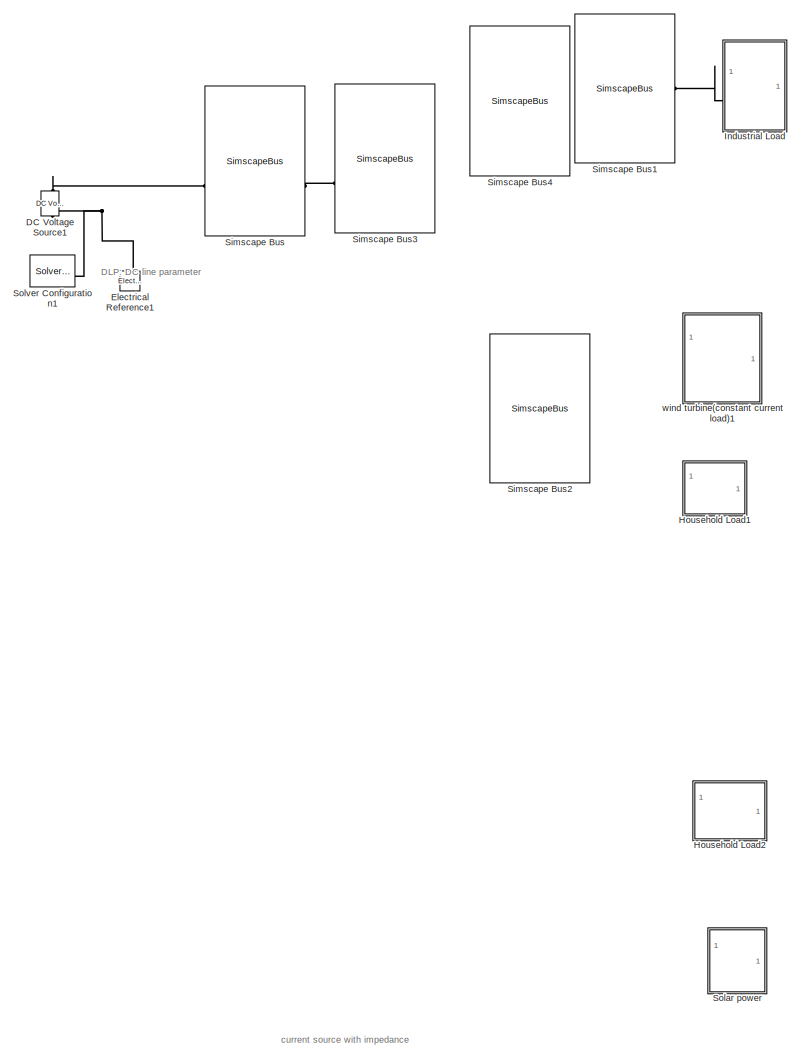
[diagram: root canvas - part 1/2, center side, full height]
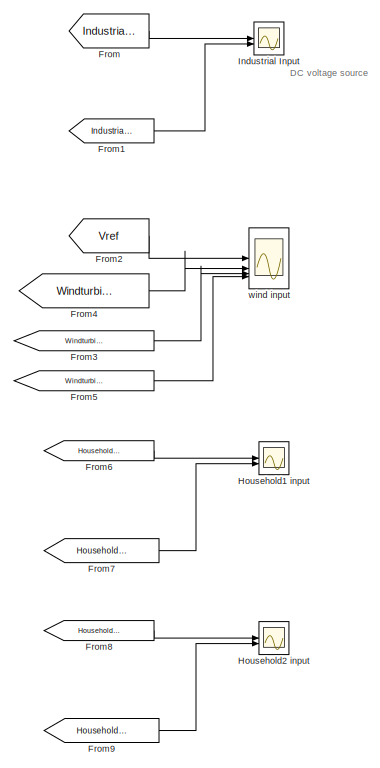
[diagram: root canvas - part 2/2, middle left region]
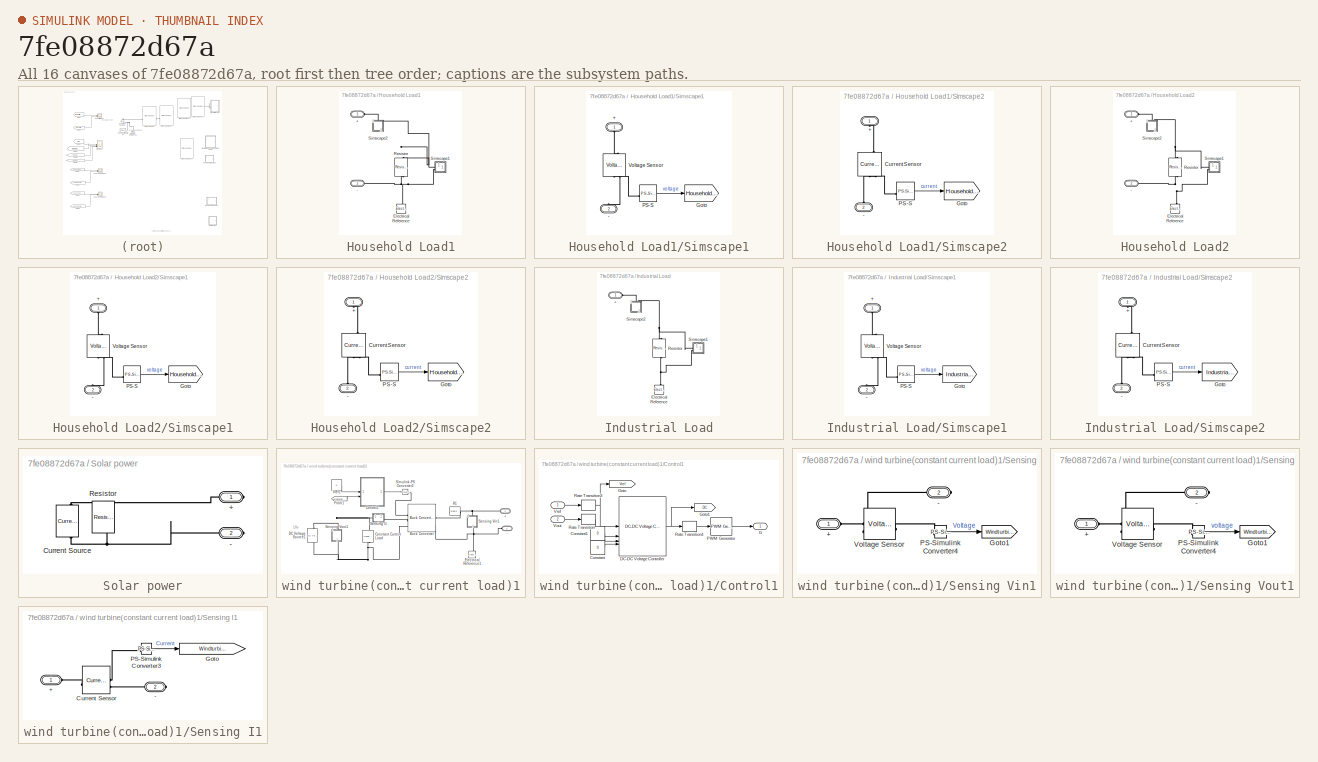
[diagram: thumbnail index - all 16 canvases of the model, root first then tree order]
MODEL slx_7fe08872d67a
KIND model
CONFIG AbsTol = auto
CONFIG EnableMultiTasking = off
CONFIG FixedStep = auto
CONFIG MaxStep = auto
CONFIG MinStep = auto
CONFIG RelTol = 1e-3
CONFIG SampleTimeConstraint = Unconstrained
CONFIG SolverName = VariableStepAuto
CONFIG StartTime = 0.0
CONFIG StopTime = 10.0
BLOCK [Reference] DC Voltage Source1  REF=ee_lib/Additional
Components/SPICE Sources/DC Voltage Source
  NameLocation = right
  SourceBlock = ee_lib/Additional\nComponents/SPICE Sources/DC Voltage Source
  SourceType = DC Voltage Source
BLOCK [Reference] Electrical Reference1  REF=fl_lib/Electrical/Electrical Elements/Electrical Reference
  NameLocation = right
  SourceBlock = fl_lib/Electrical/Electrical Elements/Electrical Reference
  SourceType = Electrical Reference
BLOCK [From] From
  GotoTag = IndustrialVoltage
  IconDisplay = Signal name
  TagVisibility = global
BLOCK [From] From1
  GotoTag = IndustrialCurrent
  IconDisplay = Signal name
  TagVisibility = global
BLOCK [From] From2
  GotoTag = Vref
  IconDisplay = Signal name
  TagVisibility = global
BLOCK [From] From3
  GotoTag = WindturbineVoltage
  IconDisplay = Signal name
  TagVisibility = global
BLOCK [From] From4
  GotoTag = WindturbineInputVoltage
  IconDisplay = Signal name
  TagVisibility = global
BLOCK [From] From5
  GotoTag = WindturbineCurrent
  IconDisplay = Signal name
  TagVisibility = global
BLOCK [From] From6
  GotoTag = Household1Voltage
  IconDisplay = Signal name
  TagVisibility = global
BLOCK [From] From7
  GotoTag = Household1Current
  IconDisplay = Signal name
  TagVisibility = global
BLOCK [From] From8
  GotoTag = Household2Voltage
  IconDisplay = Signal name
  TagVisibility = global
BLOCK [From] From9
  GotoTag = Household2Current
  IconDisplay = Signal name
  TagVisibility = global
BLOCK [SubSystem] Household Load1
BLOCK [PMIOPort] Household Load1/+
  Side = Left
BLOCK [PMIOPort] Household Load1/-
  Port = 2
  Side = Left
BLOCK [Reference] Household Load1/Electrical Reference  REF=fl_lib/Electrical/Electrical Elements/Electrical Reference
  NameLocation = right
  SourceBlock = fl_lib/Electrical/Electrical Elements/Electrical Reference
  SourceType = Electrical Reference
BLOCK [Reference] Household Load1/Resistor  REF=fl_lib/Electrical/Electrical Elements/Resistor
  NameLocation = left
  SourceBlock = fl_lib/Electrical/Electrical Elements/Resistor
  SourceType = Resistor
BLOCK [SubSystem] Household Load1/Simscape1
BLOCK [PMIOPort] Household Load1/Simscape1/+
  NameLocation = right
  Side = Left
BLOCK [PMIOPort] Household Load1/Simscape1/-
  NameLocation = left
  Port = 2
  Side = Left
BLOCK [Goto] Household Load1/Simscape1/Goto
  GotoTag = Household1Voltage
  IconDisplay = Signal name
  TagVisibility = global
BLOCK [Reference] Household Load1/Simscape1/PS-S  REF=nesl_utility/PS-Simulink
Converter
  SourceBlock = nesl_utility/PS-Simulink\nConverter
  SourceType = PS-Simulink\nConverter
BLOCK [Reference] Household Load1/Simscape1/Voltage Sensor  REF=fl_lib/Electrical/Electrical Sensors/Voltage Sensor
  NameLocation = right
  SourceBlock = fl_lib/Electrical/Electrical Sensors/Voltage Sensor
  SourceType = Voltage Sensor
BLOCK [SubSystem] Household Load1/Simscape2
  NameLocation = left
BLOCK [PMIOPort] Household Load1/Simscape2/+
  NameLocation = right
  Side = Left
BLOCK [PMIOPort] Household Load1/Simscape2/-
  NameLocation = left
  Port = 2
  Side = Left
BLOCK [Reference] Household Load1/Simscape2/Current Sensor  REF=fl_lib/Electrical/Electrical Sensors/Current Sensor
  NameLocation = left
  SourceBlock = fl_lib/Electrical/Electrical Sensors/Current Sensor
  SourceType = Current Sensor
BLOCK [Goto] Household Load1/Simscape2/Goto
  GotoTag = Household1Current
  IconDisplay = Signal name
  TagVisibility = global
BLOCK [Reference] Household Load1/Simscape2/PS-S  REF=nesl_utility/PS-Simulink
Converter
  SourceBlock = nesl_utility/PS-Simulink\nConverter
  SourceType = PS-Simulink\nConverter
BLOCK [SubSystem] Household Load2
BLOCK [PMIOPort] Household Load2/+
  Side = Left
BLOCK [PMIOPort] Household Load2/-
  Port = 2
  Side = Left
BLOCK [Reference] Household Load2/Electrical Reference  REF=fl_lib/Electrical/Electrical Elements/Electrical Reference
  NameLocation = right
  SourceBlock = fl_lib/Electrical/Electrical Elements/Electrical Reference
  SourceType = Electrical Reference
BLOCK [Reference] Household Load2/Resistor  REF=fl_lib/Electrical/Electrical Elements/Resistor
  NameLocation = left
  SourceBlock = fl_lib/Electrical/Electrical Elements/Resistor
  SourceType = Resistor
BLOCK [SubSystem] Household Load2/Simscape1
BLOCK [PMIOPort] Household Load2/Simscape1/+
  NameLocation = right
  Side = Left
BLOCK [PMIOPort] Household Load2/Simscape1/-
  NameLocation = left
  Port = 2
  Side = Left
BLOCK [Goto] Household Load2/Simscape1/Goto
  GotoTag = Household2Voltage
  IconDisplay = Signal name
  TagVisibility = global
BLOCK [Reference] Household Load2/Simscape1/PS-S  REF=nesl_utility/PS-Simulink
Converter
  SourceBlock = nesl_utility/PS-Simulink\nConverter
  SourceType = PS-Simulink\nConverter
BLOCK [Reference] Household Load2/Simscape1/Voltage Sensor  REF=fl_lib/Electrical/Electrical Sensors/Voltage Sensor
  NameLocation = right
  SourceBlock = fl_lib/Electrical/Electrical Sensors/Voltage Sensor
  SourceType = Voltage Sensor
BLOCK [SubSystem] Household Load2/Simscape2
  NameLocation = left
BLOCK [PMIOPort] Household Load2/Simscape2/+
  NameLocation = right
  Side = Left
BLOCK [PMIOPort] Household Load2/Simscape2/-
  NameLocation = left
  Port = 2
  Side = Left
BLOCK [Reference] Household Load2/Simscape2/Current Sensor  REF=fl_lib/Electrical/Electrical Sensors/Current Sensor
  NameLocation = left
  SourceBlock = fl_lib/Electrical/Electrical Sensors/Current Sensor
  SourceType = Current Sensor
BLOCK [Goto] Household Load2/Simscape2/Goto
  GotoTag = Household2Current
  IconDisplay = Signal name
  TagVisibility = global
BLOCK [Reference] Household Load2/Simscape2/PS-S  REF=nesl_utility/PS-Simulink
Converter
  SourceBlock = nesl_utility/PS-Simulink\nConverter
  SourceType = PS-Simulink\nConverter
BLOCK [Scope] Household1 input
  Floating = off
  NumInputPorts = 2
  ScopeSpecificationString = Simulink.scopes.TimeScopeBlockCfg('CurrentConfiguration', extmgr.ConfigurationSet(extmgr.Configuration('Core','General UI',true,'FigureColor',[0.501960784313725 0.501960784313725 0.501960784313725]),extmgr.Configuration('Core','Source UI',true),extmgr.Configuration('Sources','WiredSimulink',true,'DataLoggingSaveFormat','Array','DataLoggingLimitDataPoints',true,'DataLoggingDecimation','1','DataLogg...<+2675ch>
  Tag = PublishScope
BLOCK [Scope] Household2 input
  Floating = off
  NumInputPorts = 2
  ScopeSpecificationString = Simulink.scopes.TimeScopeBlockCfg('CurrentConfiguration', extmgr.ConfigurationSet(extmgr.Configuration('Core','General UI',true,'FigureColor',[0.501960784313725 0.501960784313725 0.501960784313725]),extmgr.Configuration('Core','Source UI',true),extmgr.Configuration('Sources','WiredSimulink',true,'DataLoggingSaveFormat','Array','DataLoggingLimitDataPoints',true,'DataLoggingDecimation','1','DataLogg...<+2675ch>
  Tag = PublishScope
BLOCK [Scope] Industrial Input
  Floating = off
  NumInputPorts = 2
  ScopeSpecificationString = Simulink.scopes.TimeScopeBlockCfg('CurrentConfiguration', extmgr.ConfigurationSet(extmgr.Configuration('Core','General UI',true,'FigureColor',[0.501960784313725 0.501960784313725 0.501960784313725]),extmgr.Configuration('Core','Source UI',true),extmgr.Configuration('Sources','WiredSimulink',true,'DataLoggingSaveFormat','Array','DataLoggingLimitDataPoints',true,'DataLoggingDecimation','1'),extmgr.C...<+2637ch>
  Tag = PublishScope
BLOCK [SubSystem] Industrial Load
  NameLocation = top
BLOCK [PMIOPort] Industrial Load/+
  Side = Left
BLOCK [Reference] Industrial Load/Electrical Reference  REF=fl_lib/Electrical/Electrical Elements/Electrical Reference
  NameLocation = right
  SourceBlock = fl_lib/Electrical/Electrical Elements/Electrical Reference
  SourceType = Electrical Reference
BLOCK [Reference] Industrial Load/Resistor  REF=fl_lib/Electrical/Electrical Elements/Resistor
  NameLocation = left
  SourceBlock = fl_lib/Electrical/Electrical Elements/Resistor
  SourceType = Resistor
BLOCK [SubSystem] Industrial Load/Simscape1
BLOCK [PMIOPort] Industrial Load/Simscape1/+
  NameLocation = right
  Side = Left
BLOCK [PMIOPort] Industrial Load/Simscape1/-
  NameLocation = left
  Port = 2
  Side = Left
BLOCK [Goto] Industrial Load/Simscape1/Goto
  GotoTag = IndustrialVoltage
  IconDisplay = Signal name
  TagVisibility = global
BLOCK [Reference] Industrial Load/Simscape1/PS-S  REF=nesl_utility/PS-Simulink
Converter
  SourceBlock = nesl_utility/PS-Simulink\nConverter
  SourceType = PS-Simulink\nConverter
BLOCK [Reference] Industrial Load/Simscape1/Voltage Sensor  REF=fl_lib/Electrical/Electrical Sensors/Voltage Sensor
  NameLocation = right
  SourceBlock = fl_lib/Electrical/Electrical Sensors/Voltage Sensor
  SourceType = Voltage Sensor
BLOCK [SubSystem] Industrial Load/Simscape2
  NameLocation = left
BLOCK [PMIOPort] Industrial Load/Simscape2/+
  NameLocation = right
  Side = Left
BLOCK [PMIOPort] Industrial Load/Simscape2/-
  NameLocation = left
  Port = 2
  Side = Left
BLOCK [Reference] Industrial Load/Simscape2/Current Sensor  REF=fl_lib/Electrical/Electrical Sensors/Current Sensor
  NameLocation = left
  SourceBlock = fl_lib/Electrical/Electrical Sensors/Current Sensor
  SourceType = Current Sensor
BLOCK [Goto] Industrial Load/Simscape2/Goto
  GotoTag = IndustrialCurrent
  IconDisplay = Signal name
  TagVisibility = global
BLOCK [Reference] Industrial Load/Simscape2/PS-S  REF=nesl_utility/PS-Simulink
Converter
  SourceBlock = nesl_utility/PS-Simulink\nConverter
  SourceType = PS-Simulink\nConverter
BLOCK [SimscapeBus] Simscape Bus
  HierarchyStrings = Connection1
BLOCK [SimscapeBus] Simscape Bus1
  HierarchyStrings = Connection1;Connection2
  NameLocation = top
BLOCK [SimscapeBus] Simscape Bus2
  HierarchyStrings = Connection1;Connection2
  NameLocation = top
BLOCK [SimscapeBus] Simscape Bus3
  HierarchyStrings = Connection1;Connection2
  NameLocation = top
BLOCK [SimscapeBus] Simscape Bus4
  HierarchyStrings = Connection1
BLOCK [SubSystem] Solar power
  NameLocation = top
BLOCK [PMIOPort] Solar power/+
  Side = Right
BLOCK [PMIOPort] Solar power/-
  Port = 2
  Side = Right
BLOCK [Reference] Solar power/Current Source  REF=ee_lib/Sources/Current Source
  NameLocation = right
  SourceBlock = ee_lib/Sources/Current Source
  SourceType = Current Source
BLOCK [Reference] Solar power/Resistor  REF=ee_lib/Passive/Resistor
  NameLocation = left
  SourceBlock = ee_lib/Passive/Resistor
  SourceType = Resistor
BLOCK [Reference] Solver Configuration1  REF=nesl_utility/Solver
Configuration
  SourceBlock = nesl_utility/Solver\nConfiguration
  SourceType = Solver\nConfiguration
BLOCK [Scope] wind input
  Floating = off
  NumInputPorts = 4
  ScopeSpecificationString = Simulink.scopes.TimeScopeBlockCfg('CurrentConfiguration', extmgr.ConfigurationSet(extmgr.Configuration('Core','General UI',true,'FigureColor',[0.501960784313725 0.501960784313725 0.501960784313725]),extmgr.Configuration('Core','Source UI',true),extmgr.Configuration('Sources','WiredSimulink',true,'DataLoggingSaveFormat','Array','DataLoggingLimitDataPoints',true,'DataLoggingDecimation','1','DataLogg...<+2698ch>
  Tag = PublishScope
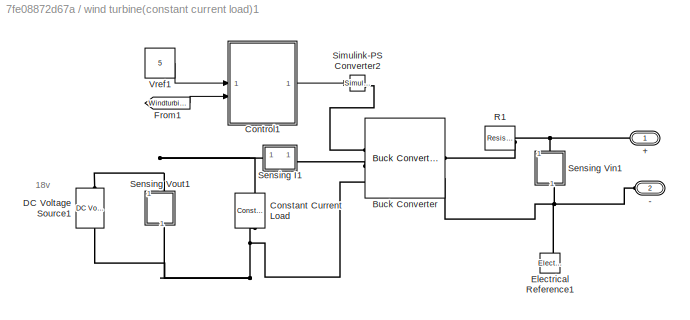
BLOCK [SubSystem] wind turbine(constant current load)1
BLOCK [PMIOPort] wind turbine(constant current load)1/+
  NameLocation = top
  Side = Left
BLOCK [PMIOPort] wind turbine(constant current load)1/-
  NameLocation = top
  Port = 2
  Side = Left
BLOCK [Reference] wind turbine(constant current load)1/Buck Converter  REF=ee_lib/Semiconductors &
Converters/Converters/Buck Converter
  SourceBlock = ee_lib/Semiconductors &\nConverters/Converters/Buck Converter
  SourceType = Buck Converter
BLOCK [Reference] wind turbine(constant current load)1/Constant Current Load   REF=ee_lib/Passive/Constant Current
Load
  SourceBlock = ee_lib/Passive/Constant Current\nLoad
  SourceType = Constant Current\nLoad
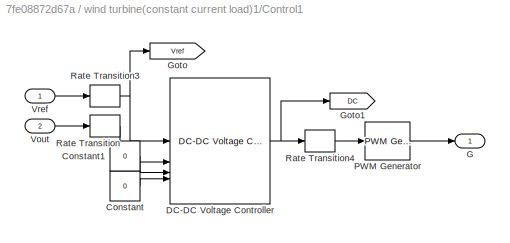
BLOCK [SubSystem] wind turbine(constant current load)1/Control1
BLOCK [Constant] wind turbine(constant current load)1/Control1/Constant
  Value = 0
BLOCK [Constant] wind turbine(constant current load)1/Control1/Constant1
  Value = 0
BLOCK [Reference] wind turbine(constant current load)1/Control1/DC-DC Voltage Controller  REF=eeDcDcVoltageController/DC-DC Voltage Controller
  SourceBlock = eeDcDcVoltageController/DC-DC Voltage Controller
  SourceType = DC-DC Voltage Controller
BLOCK [Outport] wind turbine(constant current load)1/Control1/G
  VectorParamsAs1DForOutWhenUnconnected = off
BLOCK [Goto] wind turbine(constant current load)1/Control1/Goto
  GotoTag = Vref
  TagVisibility = global
BLOCK [Goto] wind turbine(constant current load)1/Control1/Goto1
  GotoTag = DC
  TagVisibility = global
BLOCK [Reference] wind turbine(constant current load)1/Control1/PWM Generator  REF=eePwmGenerator/PWM Generator
  SourceBlock = eePwmGenerator/PWM Generator
  SourceType = PWM Generator
BLOCK [RateTransition] wind turbine(constant current load)1/Control1/Rate Transition
  OutPortSampleTime = Tsc
BLOCK [RateTransition] wind turbine(constant current load)1/Control1/Rate Transition3
  OutPortSampleTime = Tsc
BLOCK [RateTransition] wind turbine(constant current load)1/Control1/Rate Transition4
  OutPortSampleTime = Ts
BLOCK [Inport] wind turbine(constant current load)1/Control1/Vout
  Port = 2
BLOCK [Inport] wind turbine(constant current load)1/Control1/Vref
BLOCK [Reference] wind turbine(constant current load)1/DC Voltage Source1  REF=fl_lib/Electrical/Electrical Sources/DC Voltage Source
  NameLocation = right
  SourceBlock = fl_lib/Electrical/Electrical Sources/DC Voltage Source
  SourceType = DC Voltage Source
BLOCK [Reference] wind turbine(constant current load)1/Electrical Reference1  REF=fl_lib/Electrical/Electrical Elements/Electrical Reference
  NameLocation = right
  SourceBlock = fl_lib/Electrical/Electrical Elements/Electrical Reference
  SourceType = Electrical Reference
BLOCK [From] wind turbine(constant current load)1/From1
  GotoTag = WindturbineInputVoltage
  TagVisibility = global
BLOCK [Reference] wind turbine(constant current load)1/R1  REF=fl_lib/Electrical/Electrical Elements/Resistor
  NameLocation = top
  SourceBlock = fl_lib/Electrical/Electrical Elements/Resistor
  SourceType = Resistor
BLOCK [SubSystem] wind turbine(constant current load)1/Sensing I1
BLOCK [PMIOPort] wind turbine(constant current load)1/Sensing I1/+
  Side = Left
BLOCK [PMIOPort] wind turbine(constant current load)1/Sensing I1/-
  Port = 2
  Side = Right
BLOCK [Reference] wind turbine(constant current load)1/Sensing I1/Current Sensor  REF=fl_lib/Electrical/Electrical Sensors/Current Sensor
  SourceBlock = fl_lib/Electrical/Electrical Sensors/Current Sensor
  SourceType = Current Sensor
BLOCK [Goto] wind turbine(constant current load)1/Sensing I1/Goto
  GotoTag = WindturbineCurrent
  IconDisplay = Signal name
  TagVisibility = global
BLOCK [Reference] wind turbine(constant current load)1/Sensing I1/PS-Simulink Converter3  REF=nesl_utility/PS-Simulink
Converter
  SourceBlock = nesl_utility/PS-Simulink\nConverter
  SourceType = PS-Simulink\nConverter
BLOCK [SubSystem] wind turbine(constant current load)1/Sensing Vin1
  NameLocation = right
BLOCK [PMIOPort] wind turbine(constant current load)1/Sensing Vin1/+
  Side = Left
BLOCK [PMIOPort] wind turbine(constant current load)1/Sensing Vin1/-
  Port = 2
  Side = Right
BLOCK [Goto] wind turbine(constant current load)1/Sensing Vin1/Goto1
  GotoTag = WindturbineInputVoltage
  IconDisplay = Signal name
  TagVisibility = global
BLOCK [Reference] wind turbine(constant current load)1/Sensing Vin1/PS-Simulink Converter4  REF=nesl_utility/PS-Simulink
Converter
  SourceBlock = nesl_utility/PS-Simulink\nConverter
  SourceType = PS-Simulink\nConverter
BLOCK [Reference] wind turbine(constant current load)1/Sensing Vin1/Voltage Sensor  REF=fl_lib/Electrical/Electrical Sensors/Voltage Sensor
  SourceBlock = fl_lib/Electrical/Electrical Sensors/Voltage Sensor
  SourceType = Voltage Sensor
BLOCK [SubSystem] wind turbine(constant current load)1/Sensing Vout1
  NameLocation = right
BLOCK [PMIOPort] wind turbine(constant current load)1/Sensing Vout1/+
  Side = Left
BLOCK [PMIOPort] wind turbine(constant current load)1/Sensing Vout1/-
  Port = 2
  Side = Right
BLOCK [Goto] wind turbine(constant current load)1/Sensing Vout1/Goto1
  GotoTag = WindturbineVoltage
  IconDisplay = Signal name
  TagVisibility = global
BLOCK [Reference] wind turbine(constant current load)1/Sensing Vout1/PS-Simulink Converter4  REF=nesl_utility/PS-Simulink
Converter
  SourceBlock = nesl_utility/PS-Simulink\nConverter
  SourceType = PS-Simulink\nConverter
BLOCK [Reference] wind turbine(constant current load)1/Sensing Vout1/Voltage Sensor  REF=fl_lib/Electrical/Electrical Sensors/Voltage Sensor
  SourceBlock = fl_lib/Electrical/Electrical Sensors/Voltage Sensor
  SourceType = Voltage Sensor
BLOCK [Reference] wind turbine(constant current load)1/Simulink-PS Converter2  REF=nesl_utility/Simulink-PS
Converter
  SourceBlock = nesl_utility/Simulink-PS\nConverter
  SourceType = Simulink-PS\nConverter
BLOCK [Constant] wind turbine(constant current load)1/Vref1
  SampleTime = 5e-6
  Value = 5
ANNOTATION (root): DC voltage source
ANNOTATION (root): DLP: DC line parameter
ANNOTATION (root): current source with impedance
ANNOTATION wind turbine(constant current load)1: 18v
LINE From1:1 -> Industrial Input:2
LINE From2:1 -> wind input:1
LINE From3:1 -> wind input:3
LINE From4:1 -> wind input:2
LINE From5:1 -> wind input:4
LINE From6:1 -> Household1 input:1
LINE From7:1 -> Household1 input:2
LINE From8:1 -> Household2 input:1
LINE From9:1 -> Household2 input:2
LINE From:1 -> Industrial Input:1
LINE Household Load1/Simscape1/PS-S:1 -> Household Load1/Simscape1/Goto:1
LINE Household Load1/Simscape2/PS-S:1 -> Household Load1/Simscape2/Goto:1
LINE Household Load2/Simscape1/PS-S:1 -> Household Load2/Simscape1/Goto:1
LINE Household Load2/Simscape2/PS-S:1 -> Household Load2/Simscape2/Goto:1
LINE Industrial Load/Simscape1/PS-S:1 -> Industrial Load/Simscape1/Goto:1
LINE Industrial Load/Simscape2/PS-S:1 -> Industrial Load/Simscape2/Goto:1
LINE wind turbine(constant current load)1/Control1/Constant1:1 -> wind turbine(constant current load)1/Control1/DC-DC Voltage Controller:3
LINE wind turbine(constant current load)1/Control1/Constant:1 -> wind turbine(constant current load)1/Control1/DC-DC Voltage Controller:4
NET wind turbine(constant current load)1/Control1/DC-DC Voltage Controller:1 -> wind turbine(constant current load)1/Control1/Goto1:1, wind turbine(constant current load)1/Control1/Rate Transition4:1
LINE wind turbine(constant current load)1/Control1/PWM Generator:1 -> wind turbine(constant current load)1/Control1/G:1
NET wind turbine(constant current load)1/Control1/Rate Transition3:1 -> wind turbine(constant current load)1/Control1/DC-DC Voltage Controller:1, wind turbine(constant current load)1/Control1/Goto:1
LINE wind turbine(constant current load)1/Control1/Rate Transition4:1 -> wind turbine(constant current load)1/Control1/PWM Generator:1
LINE wind turbine(constant current load)1/Control1/Rate Transition:1 -> wind turbine(constant current load)1/Control1/DC-DC Voltage Controller:2
LINE wind turbine(constant current load)1/Control1/Vout:1 -> wind turbine(constant current load)1/Control1/Rate Transition:1
LINE wind turbine(constant current load)1/Control1/Vref:1 -> wind turbine(constant current load)1/Control1/Rate Transition3:1
LINE wind turbine(constant current load)1/Control1:1 -> wind turbine(constant current load)1/Simulink-PS Converter2:1
LINE wind turbine(constant current load)1/From1:1 -> wind turbine(constant current load)1/Control1:2
LINE wind turbine(constant current load)1/Sensing I1/PS-Simulink Converter3:1 -> wind turbine(constant current load)1/Sensing I1/Goto:1
LINE wind turbine(constant current load)1/Sensing Vin1/PS-Simulink Converter4:1 -> wind turbine(constant current load)1/Sensing Vin1/Goto1:1
LINE wind turbine(constant current load)1/Sensing Vout1/PS-Simulink Converter4:1 -> wind turbine(constant current load)1/Sensing Vout1/Goto1:1
LINE wind turbine(constant current load)1/Vref1:1 -> wind turbine(constant current load)1/Control1:1
PLINE DC Voltage Source1:LConn1 -- Simscape Bus:LConn1
PNET net1: DC Voltage Source1:RConn1 -- Electrical Reference1:LConn1 -- Solver Configuration1:RConn1
PLINE Household Load1/+:RConn1 -- Household Load1/Simscape2:LConn1
PNET net2: Household Load1/-:RConn1 -- Household Load1/Electrical Reference:LConn1 -- Household Load1/Resistor:RConn1 -- Household Load1/Simscape1:LConn2
PNET net3: Household Load1/Resistor:LConn1 -- Household Load1/Simscape1:LConn1 -- Household Load1/Simscape2:LConn2
PLINE Household Load1/Simscape1/+:RConn1 -- Household Load1/Simscape1/Voltage Sensor:LConn1
PLINE Household Load1/Simscape1/-:RConn1 -- Household Load1/Simscape1/Voltage Sensor:RConn2
PLINE Household Load1/Simscape1/PS-S:LConn1 -- Household Load1/Simscape1/Voltage Sensor:RConn1
PLINE Household Load1/Simscape2/+:RConn1 -- Household Load1/Simscape2/Current Sensor:LConn1
PLINE Household Load1/Simscape2/-:RConn1 -- Household Load1/Simscape2/Current Sensor:RConn2
PLINE Household Load1/Simscape2/Current Sensor:RConn1 -- Household Load1/Simscape2/PS-S:LConn1
PLINE Household Load2/+:RConn1 -- Household Load2/Simscape2:LConn1
PNET net4: Household Load2/-:RConn1 -- Household Load2/Electrical Reference:LConn1 -- Household Load2/Resistor:RConn1 -- Household Load2/Simscape1:LConn2
PNET net5: Household Load2/Resistor:LConn1 -- Household Load2/Simscape1:LConn1 -- Household Load2/Simscape2:LConn2
PLINE Household Load2/Simscape1/+:RConn1 -- Household Load2/Simscape1/Voltage Sensor:LConn1
PLINE Household Load2/Simscape1/-:RConn1 -- Household Load2/Simscape1/Voltage Sensor:RConn2
PLINE Household Load2/Simscape1/PS-S:LConn1 -- Household Load2/Simscape1/Voltage Sensor:RConn1
PLINE Household Load2/Simscape2/+:RConn1 -- Household Load2/Simscape2/Current Sensor:LConn1
PLINE Household Load2/Simscape2/-:RConn1 -- Household Load2/Simscape2/Current Sensor:RConn2
PLINE Household Load2/Simscape2/Current Sensor:RConn1 -- Household Load2/Simscape2/PS-S:LConn1
PLINE Industrial Load/+:RConn1 -- Industrial Load/Simscape2:LConn1
PNET net6: Industrial Load/Electrical Reference:LConn1 -- Industrial Load/Resistor:RConn1 -- Industrial Load/Simscape1:LConn2
PNET net7: Industrial Load/Resistor:LConn1 -- Industrial Load/Simscape1:LConn1 -- Industrial Load/Simscape2:LConn2
PLINE Industrial Load/Simscape1/+:RConn1 -- Industrial Load/Simscape1/Voltage Sensor:LConn1
PLINE Industrial Load/Simscape1/-:RConn1 -- Industrial Load/Simscape1/Voltage Sensor:RConn2
PLINE Industrial Load/Simscape1/PS-S:LConn1 -- Industrial Load/Simscape1/Voltage Sensor:RConn1
PLINE Industrial Load/Simscape2/+:RConn1 -- Industrial Load/Simscape2/Current Sensor:LConn1
PLINE Industrial Load/Simscape2/-:RConn1 -- Industrial Load/Simscape2/Current Sensor:RConn2
PLINE Industrial Load/Simscape2/Current Sensor:RConn1 -- Industrial Load/Simscape2/PS-S:LConn1
PLINE Industrial Load:LConn1 -- Simscape Bus1:LConn1
PLINE Simscape Bus3:RConn1 -- Simscape Bus:RConn1
PNET net8: Solar power/+:RConn1 -- Solar power/Current Source:LConn1 -- Solar power/Resistor:LConn1
PNET net9: Solar power/-:RConn1 -- Solar power/Current Source:RConn1 -- Solar power/Resistor:RConn1
PNET net10: wind turbine(constant current load)1/+:RConn1 -- wind turbine(constant current load)1/R1:LConn1 -- wind turbine(constant current load)1/Sensing Vin1:LConn1
PNET net11: wind turbine(constant current load)1/-:RConn1 -- wind turbine(constant current load)1/Buck Converter:RConn2 -- wind turbine(constant current load)1/Electrical Reference1:LConn1 -- wind turbine(constant current load)1/Sensing Vin1:RConn1
PLINE wind turbine(constant current load)1/Buck Converter:LConn1 -- wind turbine(constant current load)1/Simulink-PS Converter2:RConn1
PLINE wind turbine(constant current load)1/Buck Converter:LConn2 -- wind turbine(constant current load)1/Sensing I1:RConn1
PNET net12: wind turbine(constant current load)1/Buck Converter:LConn3 -- wind turbine(constant current load)1/Constant Current Load :RConn1 -- wind turbine(constant current load)1/DC Voltage Source1:RConn1 -- wind turbine(constant current load)1/Sensing Vout1:RConn1
PLINE wind turbine(constant current load)1/Buck Converter:RConn1 -- wind turbine(constant current load)1/R1:RConn1
PNET net13: wind turbine(constant current load)1/Constant Current Load :LConn1 -- wind turbine(constant current load)1/DC Voltage Source1:LConn1 -- wind turbine(constant current load)1/Sensing I1:LConn1 -- wind turbine(constant current load)1/Sensing Vout1:LConn1
PLINE wind turbine(constant current load)1/Sensing I1/+:RConn1 -- wind turbine(constant current load)1/Sensing I1/Current Sensor:LConn1
PLINE wind turbine(constant current load)1/Sensing I1/-:RConn1 -- wind turbine(constant current load)1/Sensing I1/Current Sensor:RConn2
PLINE wind turbine(constant current load)1/Sensing I1/Current Sensor:RConn1 -- wind turbine(constant current load)1/Sensing I1/PS-Simulink Converter3:LConn1
PLINE wind turbine(constant current load)1/Sensing Vin1/+:RConn1 -- wind turbine(constant current load)1/Sensing Vin1/Voltage Sensor:LConn1
PLINE wind turbine(constant current load)1/Sensing Vin1/-:RConn1 -- wind turbine(constant current load)1/Sensing Vin1/Voltage Sensor:RConn2
PLINE wind turbine(constant current load)1/Sensing Vin1/PS-Simulink Converter4:LConn1 -- wind turbine(constant current load)1/Sensing Vin1/Voltage Sensor:RConn1
PLINE wind turbine(constant current load)1/Sensing Vout1/+:RConn1 -- wind turbine(constant current load)1/Sensing Vout1/Voltage Sensor:LConn1
PLINE wind turbine(constant current load)1/Sensing Vout1/-:RConn1 -- wind turbine(constant current load)1/Sensing Vout1/Voltage Sensor:RConn2
PLINE wind turbine(constant current load)1/Sensing Vout1/PS-Simulink Converter4:LConn1 -- wind turbine(constant current load)1/Sensing Vout1/Voltage Sensor:RConn1
note: NET lines group one-source signal fan-out (src -> all destinations, sorted); 1:1 wires keep LINE; PNET lines group multi-terminal physical nets as a canonical sorted terminal list (undirected conserving connections); 2-terminal nets keep the pairwise PLINE form
